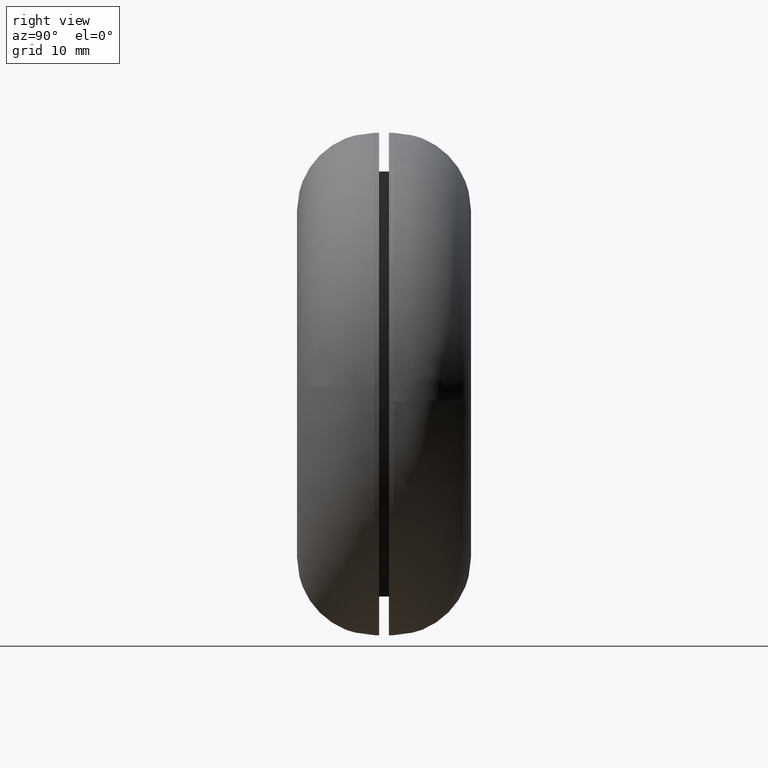
[diagram: clean part render]
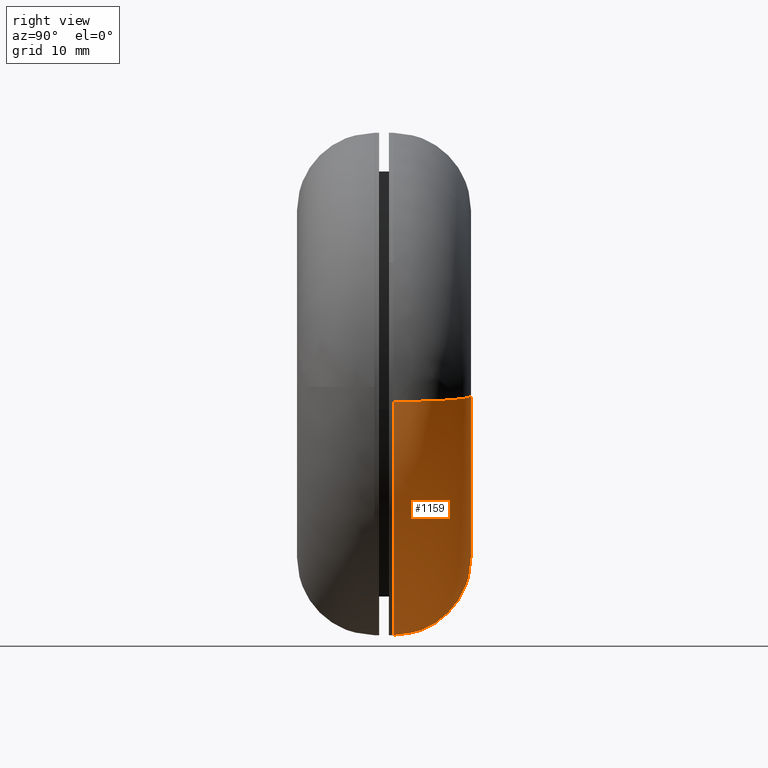
[diagram: same view with one face highlighted and labeled with its STEP entity id]
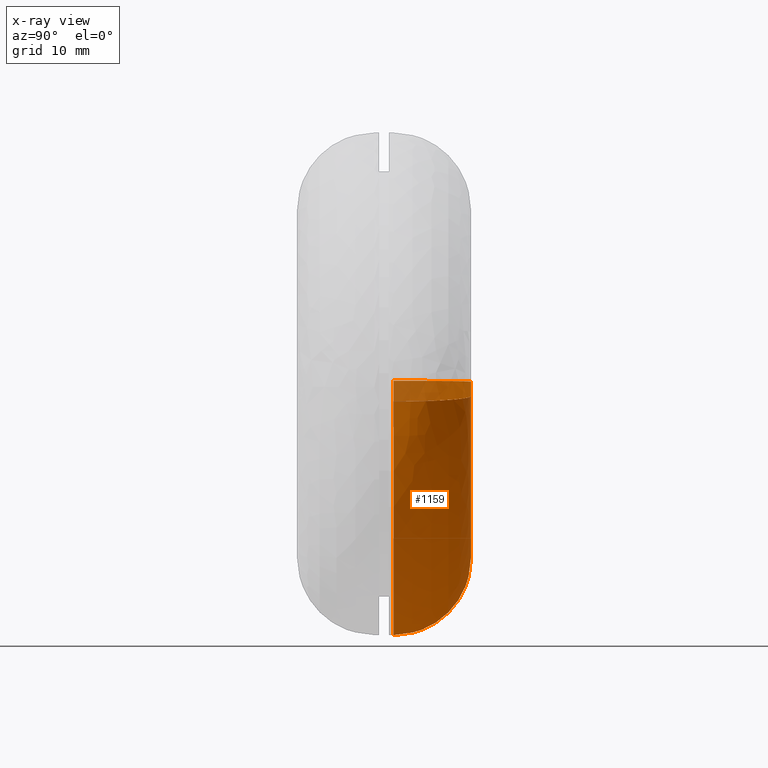
[diagram: x-ray of the same camera — body ghosted, the highlighted face saturated]
A machine part, right view. The second image highlights one B-rep face of the part: STEP entity #1159.
The next image is the same camera in x-ray: the body ghosted, the highlighted face saturated — about 8% of this face is hidden behind the body in this view.
In plain terms, the highlighted face is a freeform B-spline surface patch.
Its self-contained STEP definition (entity closure, byte-faithful):
#563=CARTESIAN_POINT('',(25.936707730010639,9.999992535873165,-1.813061534431493));
#564=VERTEX_POINT('',#563);
#614=CARTESIAN_POINT('',(-25.997947368348360,9.999992408155629,0.326699605003920));
#615=VERTEX_POINT('',#614);
#629=CARTESIAN_POINT('',(0.0,10.0,-26.0));
#630=VERTEX_POINT('',#629);
#631=CARTESIAN_POINT('',(-25.997947368348360,9.999992408155629,0.326699605003920));
#632=CARTESIAN_POINT('',(-25.999999999986986,9.999992431707335,0.163356250775127));
#633=CARTESIAN_POINT('',(-25.999999999987029,9.999992455556859,-1.544972E-013));
#634=CARTESIAN_POINT('',(-25.999999999993559,9.999996251479043,-26.000000000000082));
#635=CARTESIAN_POINT('',(0.0,10.0,-26.0));
#643=(BOUNDED_CURVE()B_SPLINE_CURVE(2,(#631,#632,#633,#634,#635),.UNSPECIFIED.,.F.,.U.)B_SPLINE_CURVE_WITH_KNOTS((3,2,3),(0.747784413842901,0.750000000000000,1.0),.UNSPECIFIED.)CURVE()GEOMETRIC_REPRESENTATION_ITEM()RATIONAL_B_SPLINE_CURVE((0.994854567052930,0.997404279355555,1.0,0.707106781186547,1.0))REPRESENTATION_ITEM(''));
#644=EDGE_CURVE('',#615,#630,#643,.T.);
#646=CARTESIAN_POINT('',(0.0,10.0,-26.0));
#647=CARTESIAN_POINT('',(24.245960846328479,9.999996267936583,-25.999999999999758));
#648=CARTESIAN_POINT('',(25.936707730010635,9.999992535873165,-1.813061534431493));
#656=(BOUNDED_CURVE()B_SPLINE_CURVE(2,(#646,#647,#648),.UNSPECIFIED.,.F.,.U.)B_SPLINE_CURVE_WITH_KNOTS((3,3),(0.0,0.237833706470990),.UNSPECIFIED.)CURVE()GEOMETRIC_REPRESENTATION_ITEM()RATIONAL_B_SPLINE_CURVE((1.0,0.721360480677512,0.972879918553122))REPRESENTATION_ITEM(''));
#657=EDGE_CURVE('',#630,#564,#656,.T.);
#1035=CARTESIAN_POINT('',(17.956182129285530,18.0,-1.255198528403280));
#1036=VERTEX_POINT('',#1035);
#1037=CARTESIAN_POINT('',(17.956182129285537,18.000000000000007,-1.255198528403281));
#1038=CARTESIAN_POINT('',(25.936715070811609,17.999999999678941,-1.813063558206155));
#1039=CARTESIAN_POINT('',(25.936707730010635,9.999992535873165,-1.813061534431494));
#1047=(BOUNDED_CURVE()B_SPLINE_CURVE(2,(#1037,#1038,#1039),.UNSPECIFIED.,.F.,.U.)B_SPLINE_CURVE_WITH_KNOTS((3,3),(-1.734750791616700,-0.265248238849736),.UNSPECIFIED.)CURVE()GEOMETRIC_REPRESENTATION_ITEM()RATIONAL_B_SPLINE_CURVE((0.869031711860814,0.614498048613945,0.869032047728338))REPRESENTATION_ITEM(''));
#1048=EDGE_CURVE('',#1036,#564,#1047,.T.);
#1067=CARTESIAN_POINT('',(-17.998578795695579,18.0,0.226188717903136));
#1068=VERTEX_POINT('',#1067);
#1082=CARTESIAN_POINT('',(-17.998578795695575,17.999999999999993,0.226188717903136));
#1083=CARTESIAN_POINT('',(-25.997954850060669,17.999999999946148,0.326708416386084));
#1084=CARTESIAN_POINT('',(-25.997947368348360,9.999992408155629,0.326699605003920));
#1092=(BOUNDED_CURVE()B_SPLINE_CURVE(2,(#1082,#1083,#1084),.UNSPECIFIED.,.F.,.U.)B_SPLINE_CURVE_WITH_KNOTS((3,3),(-1.734750791651407,-0.265248222260906),.UNSPECIFIED.)CURVE()GEOMETRIC_REPRESENTATION_ITEM()RATIONAL_B_SPLINE_CURVE((0.889029723573963,0.628638771488335,0.889030073037093))REPRESENTATION_ITEM(''));
#1093=EDGE_CURVE('',#1068,#615,#1092,.T.);
#1100=CARTESIAN_POINT('',(-17.442325562079233,17.980634904172629,0.219198265645082));
#1101=CARTESIAN_POINT('',(-17.661523827724320,17.980634904172632,-17.223127296434146));
#1102=CARTESIAN_POINT('',(-0.219198265645083,17.980634904172629,-17.442325562079233));
#1103=CARTESIAN_POINT('',(16.252521878773692,17.980634904172636,-17.649326198261452));
#1104=CARTESIAN_POINT('',(17.401239181373938,17.980634904172629,-1.216406118794818));
#1105=CARTESIAN_POINT('',(-26.618204680096959,18.620298112139096,0.334511833281452));
#1106=CARTESIAN_POINT('',(-26.952716513378416,18.620298112139100,-26.283692846815516));
#1107=CARTESIAN_POINT('',(-0.334511833281454,18.620298112139096,-26.618204680096959));
#1108=CARTESIAN_POINT('',(24.802481320351070,18.620298112139096,-26.934102080543827));
#1109=CARTESIAN_POINT('',(26.555503999084802,18.620298112139100,-1.856320530709271));
#1110=CARTESIAN_POINT('',(-25.978583040710532,9.443695071055572,0.326473687592475));
#1111=CARTESIAN_POINT('',(-26.305056728303004,9.443695071055574,-25.652109353118060));
#1112=CARTESIAN_POINT('',(-0.326473687592476,9.443695071055572,-25.978583040710532));
#1113=CARTESIAN_POINT('',(24.206490570650484,9.443695071055572,-26.286889590625581));
#1114=CARTESIAN_POINT('',(25.917389024511465,9.443695071055572,-1.811714112081542));
#1122=(BOUNDED_SURFACE()B_SPLINE_SURFACE(2,2,((#1100,#1105,#1110),(#1101,#1106,#1111),(#1102,#1107,#1112),(#1103,#1108,#1113),(#1104,#1109,#1114)),.UNSPECIFIED.,.F.,.F.,.U.)B_SPLINE_SURFACE_WITH_KNOTS((3,2,3),(3,3),(0.0,43.046124447820333,84.370403917727856),(0.0,14.579001387978600),.UNSPECIFIED.)GEOMETRIC_REPRESENTATION_ITEM()RATIONAL_B_SPLINE_SURFACE(((0.916342114969850,0.601326351528802,0.916342521560299),(0.647951723382004,0.425201940872182,0.647952010884867),(0.916342114969850,0.601326351528802,0.916342521560299),(0.658687339045518,0.432246917298447,0.658687631311885),(0.895729732895903,0.587799996790374,0.895730130340425)))REPRESENTATION_ITEM('')SURFACE());
#1123=ORIENTED_EDGE('',*,*,#657,.F.);
#1124=ORIENTED_EDGE('',*,*,#644,.F.);
#1125=ORIENTED_EDGE('',*,*,#1093,.F.);
#1126=CARTESIAN_POINT('',(0.0,18.0,-18.0));
#1127=VERTEX_POINT('',#1126);
#1128=CARTESIAN_POINT('',(-17.998578795695579,17.999999999999996,0.226188717903136));
#1129=CARTESIAN_POINT('',(-18.000000000000007,18.000000000000007,0.113098823856473));
#1130=CARTESIAN_POINT('',(-18.0,18.0,-3.673819E-016));
#1131=CARTESIAN_POINT('',(-18.000000000000007,18.000000000000007,-18.000000000000007));
#1132=CARTESIAN_POINT('',(0.0,18.0,-18.0));
#1140=(BOUNDED_CURVE()B_SPLINE_CURVE(2,(#1128,#1129,#1130,#1131,#1132),.UNSPECIFIED.,.F.,.U.)B_SPLINE_CURVE_WITH_KNOTS((3,2,3),(0.747784295921680,0.750000000000000,1.0),.UNSPECIFIED.)CURVE()GEOMETRIC_REPRESENTATION_ITEM()RATIONAL_B_SPLINE_CURVE((0.994854295643902,0.997404141202251,1.0,0.707106781186547,1.0))REPRESENTATION_ITEM(''));
#1141=EDGE_CURVE('',#1068,#1127,#1140,.T.);
#1142=ORIENTED_EDGE('',*,*,#1141,.T.);
#1143=CARTESIAN_POINT('',(0.0,18.0,-18.0));
#1144=CARTESIAN_POINT('',(16.785663250735176,17.999999999999996,-17.999999999999996));
#1145=CARTESIAN_POINT('',(17.956182129285537,18.0,-1.255198528403280));
#1153=(BOUNDED_CURVE()B_SPLINE_CURVE(2,(#1143,#1144,#1145),.UNSPECIFIED.,.F.,.U.)B_SPLINE_CURVE_WITH_KNOTS((3,3),(0.0,0.237833686534481),.UNSPECIFIED.)CURVE()GEOMETRIC_REPRESENTATION_ITEM()RATIONAL_B_SPLINE_CURVE((1.0,0.721360504034585,0.972879876385683))REPRESENTATION_ITEM(''));
#1154=EDGE_CURVE('',#1127,#1036,#1153,.T.);
#1155=ORIENTED_EDGE('',*,*,#1154,.T.);
#1156=ORIENTED_EDGE('',*,*,#1048,.T.);
#1157=EDGE_LOOP('',(#1123,#1124,#1125,#1142,#1155,#1156));
#1158=FACE_OUTER_BOUND('',#1157,.T.);
#1159=ADVANCED_FACE('',(#1158),#1122,.T.);